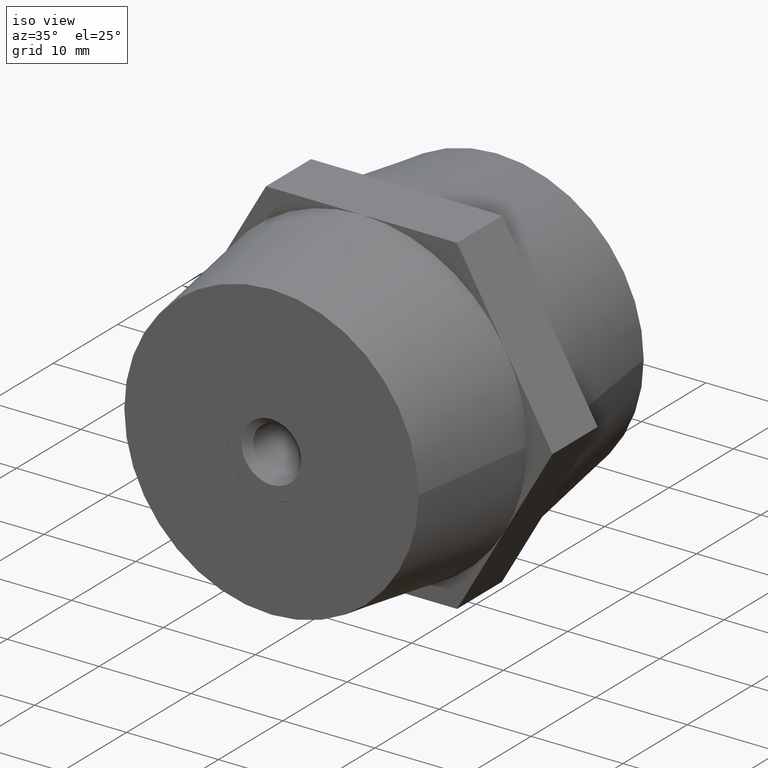
[diagram: clean part render]
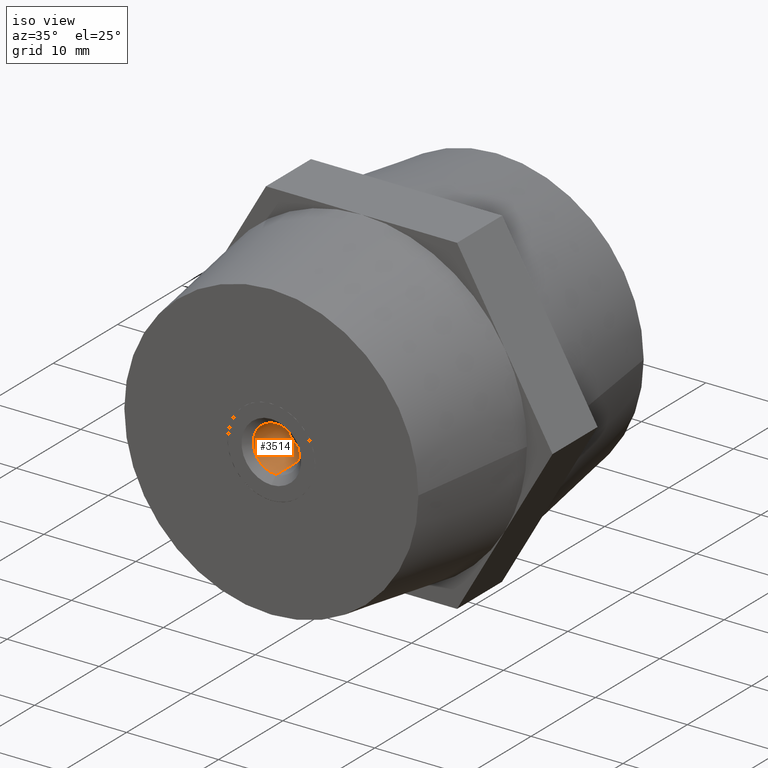
[diagram: same view with one face highlighted and labeled with its STEP entity id]
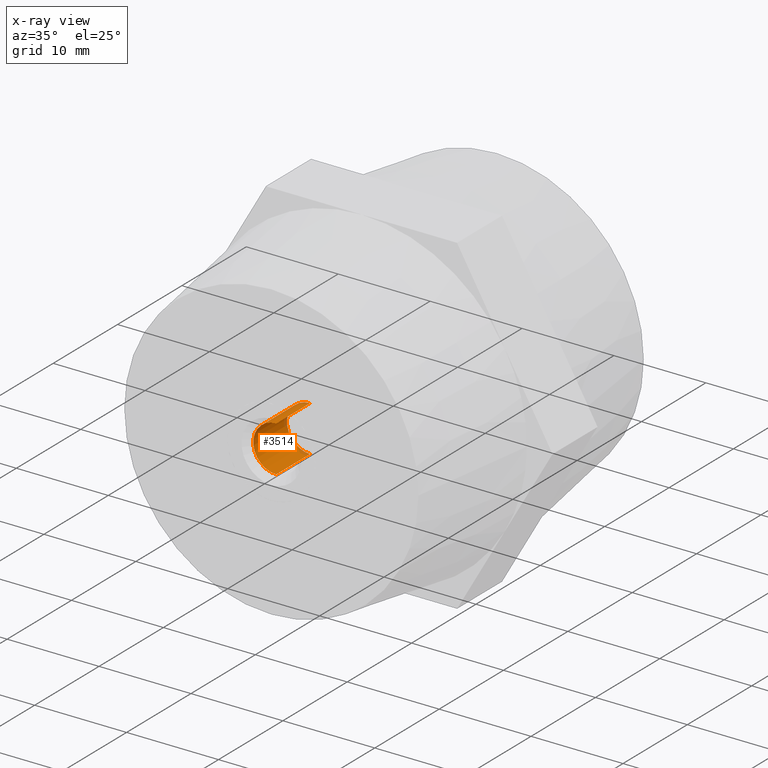
[diagram: x-ray of the same camera — body ghosted, the highlighted face saturated]
A machine part, iso view. The second image highlights one B-rep face of the part: STEP entity #3514.
The next image is the same camera in x-ray: the body ghosted, the highlighted face saturated — about 4% of this face is hidden behind the body in this view.
In plain terms, the highlighted cylindrical surface (edge-blend (fillet) strip) has radius 2.5 mm, axis along (-0, -1, 0).
Its self-contained STEP definition (entity closure, byte-faithful):
#288 = FACE_OUTER_BOUND ( 'NONE', #3541, .T. ) ;
#385 = CARTESIAN_POINT ( 'NONE',  ( 3.061616997868383100E-016, 8.000000000000000000, -2.500000000000000000 ) ) ;
#446 = CARTESIAN_POINT ( 'NONE',  ( 0.0000000000000000000, 8.000000000000000000, 0.0000000000000000000 ) ) ;
#474 = AXIS2_PLACEMENT_3D ( 'NONE', #446, #1002, #3740 ) ;
#478 = LINE ( 'NONE', #3111, #1687 ) ;
#525 = AXIS2_PLACEMENT_3D ( 'NONE', #1781, #1735, #3859 ) ;
#568 = EDGE_CURVE ( 'NONE', #1526, #1268, #3059, .T. ) ;
#636 = VERTEX_POINT ( 'NONE', #1362 ) ;
#1002 = DIRECTION ( 'NONE',  ( 0.0000000000000000000, 1.000000000000000000, 0.0000000000000000000 ) ) ;
#1169 = ORIENTED_EDGE ( 'NONE', *, *, #2766, .T. ) ;
#1268 = VERTEX_POINT ( 'NONE', #3040 ) ;
#1362 = CARTESIAN_POINT ( 'NONE',  ( 0.0000000000000000000, 2.000000000000000000, 2.500000000000000000 ) ) ;
#1385 = EDGE_CURVE ( 'NONE', #2763, #1268, #3612, .T. ) ;
#1524 = CIRCLE ( 'NONE', #2632, 2.500000000000000000 ) ;
#1526 = VERTEX_POINT ( 'NONE', #1965 ) ;
#1651 = DIRECTION ( 'NONE',  ( 0.0000000000000000000, 1.000000000000000000, 0.0000000000000000000 ) ) ;
#1687 = VECTOR ( 'NONE', #1651, 1000.000000000000000 ) ;
#1735 = DIRECTION ( 'NONE',  ( 0.0000000000000000000, 1.000000000000000000, 0.0000000000000000000 ) ) ;
#1781 = CARTESIAN_POINT ( 'NONE',  ( 0.0000000000000000000, 7.250000000000000000, 0.0000000000000000000 ) ) ;
#1847 = ORIENTED_EDGE ( 'NONE', *, *, #1385, .F. ) ;
#1864 = ORIENTED_EDGE ( 'NONE', *, *, #568, .T. ) ;
#1874 = CYLINDRICAL_SURFACE ( 'NONE', #474, 2.500000000000000000 ) ;
#1884 = CARTESIAN_POINT ( 'NONE',  ( 3.061616997868383100E-016, 2.000000000000000000, -2.500000000000000000 ) ) ;
#1965 = CARTESIAN_POINT ( 'NONE',  ( 0.0000000000000000000, 7.250000000000000000, 2.500000000000000000 ) ) ;
#2454 = EDGE_CURVE ( 'NONE', #636, #2763, #1524, .T. ) ;
#2519 = DIRECTION ( 'NONE',  ( 0.0000000000000000000, 1.000000000000000000, 0.0000000000000000000 ) ) ;
#2632 = AXIS2_PLACEMENT_3D ( 'NONE', #3721, #2519, #3711 ) ;
#2763 = VERTEX_POINT ( 'NONE', #1884 ) ;
#2766 = EDGE_CURVE ( 'NONE', #636, #1526, #478, .T. ) ;
#3040 = CARTESIAN_POINT ( 'NONE',  ( 3.061616997868383100E-016, 7.250000000000000000, -2.500000000000000000 ) ) ;
#3059 = CIRCLE ( 'NONE', #525, 2.500000000000000000 ) ;
#3101 = DIRECTION ( 'NONE',  ( 0.0000000000000000000, 1.000000000000000000, 0.0000000000000000000 ) ) ;
#3111 = CARTESIAN_POINT ( 'NONE',  ( 0.0000000000000000000, 8.000000000000000000, 2.500000000000000000 ) ) ;
#3250 = ORIENTED_EDGE ( 'NONE', *, *, #2454, .F. ) ;
#3320 = VECTOR ( 'NONE', #3101, 1000.000000000000000 ) ;
#3514 = ADVANCED_FACE ( 'NONE', ( #288 ), #1874, .F. ) ;
#3541 = EDGE_LOOP ( 'NONE', ( #1847, #3250, #1169, #1864 ) ) ;
#3612 = LINE ( 'NONE', #385, #3320 ) ;
#3711 = DIRECTION ( 'NONE',  ( 0.0000000000000000000, 0.0000000000000000000, 1.000000000000000000 ) ) ;
#3721 = CARTESIAN_POINT ( 'NONE',  ( 0.0000000000000000000, 2.000000000000000000, 0.0000000000000000000 ) ) ;
#3740 = DIRECTION ( 'NONE',  ( 0.0000000000000000000, 0.0000000000000000000, 1.000000000000000000 ) ) ;
#3859 = DIRECTION ( 'NONE',  ( 0.0000000000000000000, 0.0000000000000000000, 1.000000000000000000 ) ) ;